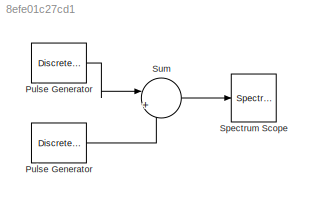
MODEL slx_8efe01c27cd1
KIND model
BLOCK [DiscretePulseGenerator] Pulse Generator
  Amplitude = 2
  Period = 4096
  Ports = [0, 1]
  PulseWidth = 1024
  SampleTime = 9.76562e-4
BLOCK [DiscretePulseGenerator] Pulse Generator 
  Period = 4096
  PhaseDelay = 1024
  Ports = [0, 1]
  PulseWidth = 1024
  SampleTime = 9.76562e-4
BLOCK [SpectrumAnalyzer] Spectrum Scope
  Ports = [1]
BLOCK [Sum] Sum
  IconShape = round
  InputSameDT = off
  Inputs = |++
  OutDataTypeStr = Inherit: Inherit via internal rule
  Ports = [2, 1]
  SaturateOnIntegerOverflow = off
LINE Pulse Generator :1 -> Sum:2
LINE Pulse Generator:1 -> Sum:1
LINE Sum:1 -> Spectrum Scope:1
